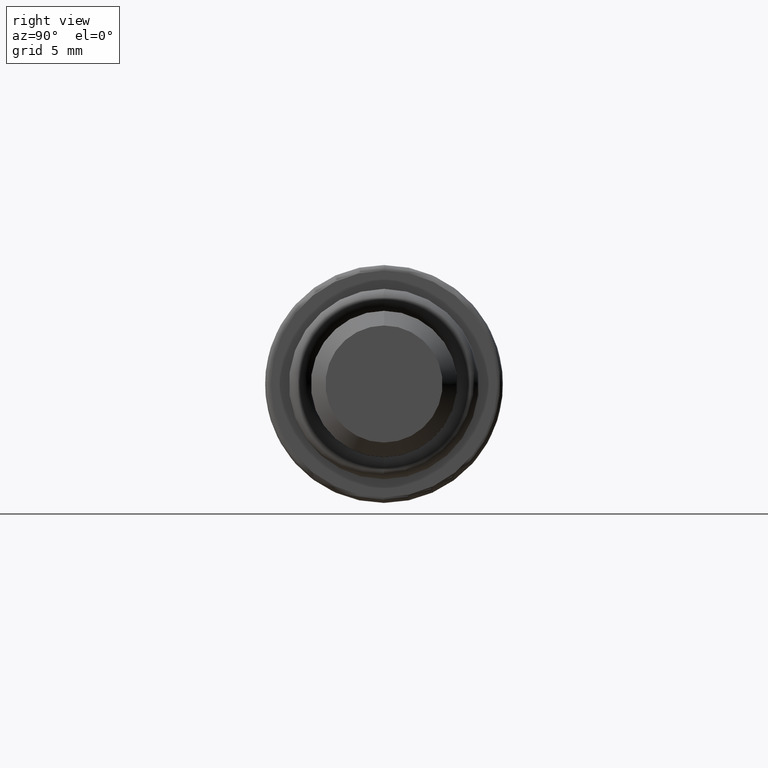
[diagram: clean part render]
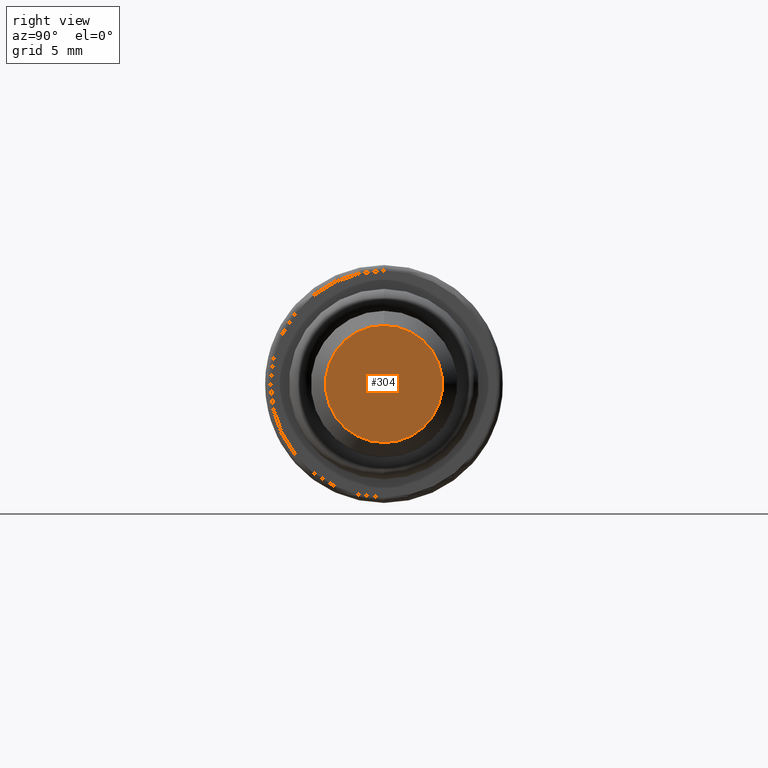
[diagram: same view with one face highlighted and labeled with its STEP entity id]
A machine part, right view. The second image highlights one B-rep face of the part: STEP entity #304.
In plain terms, the highlighted planar face has unit normal (1, 0, 0).
Its self-contained STEP definition (entity closure, byte-faithful):
#14 = CIRCLE ( 'NONE', #543, 3.199999999999998000 ) ;
#37 = CARTESIAN_POINT ( 'NONE',  ( 30.00000000000000000, 0.0000000000000000000, 0.0000000000000000000 ) ) ;
#61 = EDGE_CURVE ( 'NONE', #803, #601, #14, .T. ) ;
#95 = EDGE_CURVE ( 'NONE', #601, #803, #206, .T. ) ;
#173 = DIRECTION ( 'NONE',  ( 1.000000000000000000, 0.0000000000000000000, 0.0000000000000000000 ) ) ;
#193 = ORIENTED_EDGE ( 'NONE', *, *, #95, .T. ) ;
#199 = FACE_OUTER_BOUND ( 'NONE', #804, .T. ) ;
#206 = CIRCLE ( 'NONE', #310, 3.199999999999998000 ) ;
#238 = DIRECTION ( 'NONE',  ( 0.0000000000000000000, 0.0000000000000000000, -1.000000000000000000 ) ) ;
#250 = DIRECTION ( 'NONE',  ( 1.000000000000000000, 0.0000000000000000000, 0.0000000000000000000 ) ) ;
#304 = ADVANCED_FACE ( 'NONE', ( #199 ), #658, .T. ) ;
#310 = AXIS2_PLACEMENT_3D ( 'NONE', #37, #708, #789 ) ;
#402 = ORIENTED_EDGE ( 'NONE', *, *, #61, .T. ) ;
#462 = CARTESIAN_POINT ( 'NONE',  ( 30.00000000000000000, 4.408728476930469200E-016, -3.199999999999998000 ) ) ;
#484 = CARTESIAN_POINT ( 'NONE',  ( 30.00000000000000000, 0.0000000000000000000, 0.0000000000000000000 ) ) ;
#497 = CARTESIAN_POINT ( 'NONE',  ( 30.00000000000000000, 0.0000000000000000000, 3.199999999999998000 ) ) ;
#543 = AXIS2_PLACEMENT_3D ( 'NONE', #664, #173, #238 ) ;
#601 = VERTEX_POINT ( 'NONE', #497 ) ;
#605 = DIRECTION ( 'NONE',  ( 0.0000000000000000000, 0.0000000000000000000, -1.000000000000000000 ) ) ;
#658 = PLANE ( 'NONE',  #714 ) ;
#664 = CARTESIAN_POINT ( 'NONE',  ( 30.00000000000000000, 0.0000000000000000000, 0.0000000000000000000 ) ) ;
#708 = DIRECTION ( 'NONE',  ( 1.000000000000000000, 0.0000000000000000000, 0.0000000000000000000 ) ) ;
#714 = AXIS2_PLACEMENT_3D ( 'NONE', #484, #250, #605 ) ;
#789 = DIRECTION ( 'NONE',  ( 0.0000000000000000000, 0.0000000000000000000, -1.000000000000000000 ) ) ;
#803 = VERTEX_POINT ( 'NONE', #462 ) ;
#804 = EDGE_LOOP ( 'NONE', ( #193, #402 ) ) ;